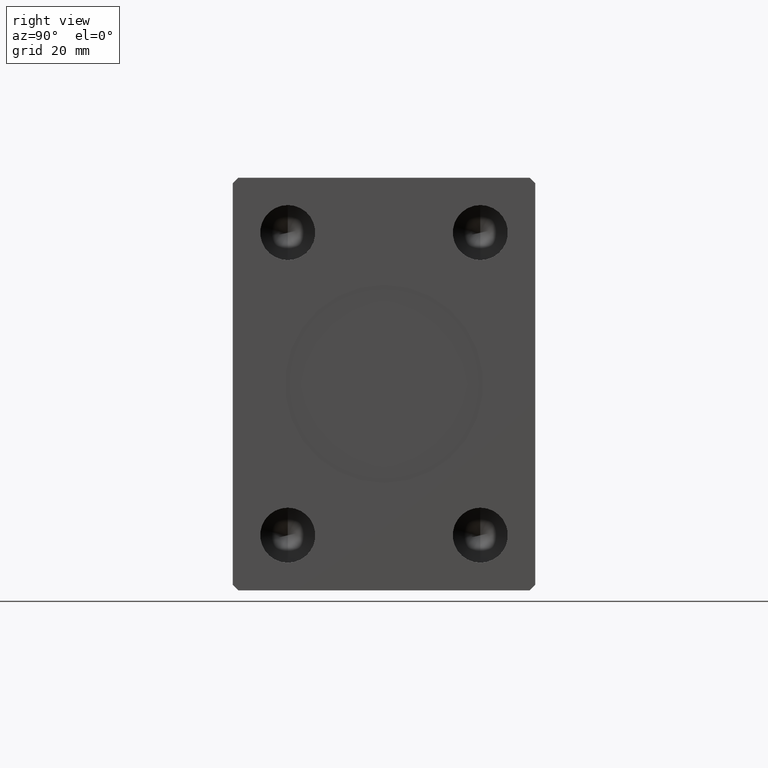
[diagram: clean part render]
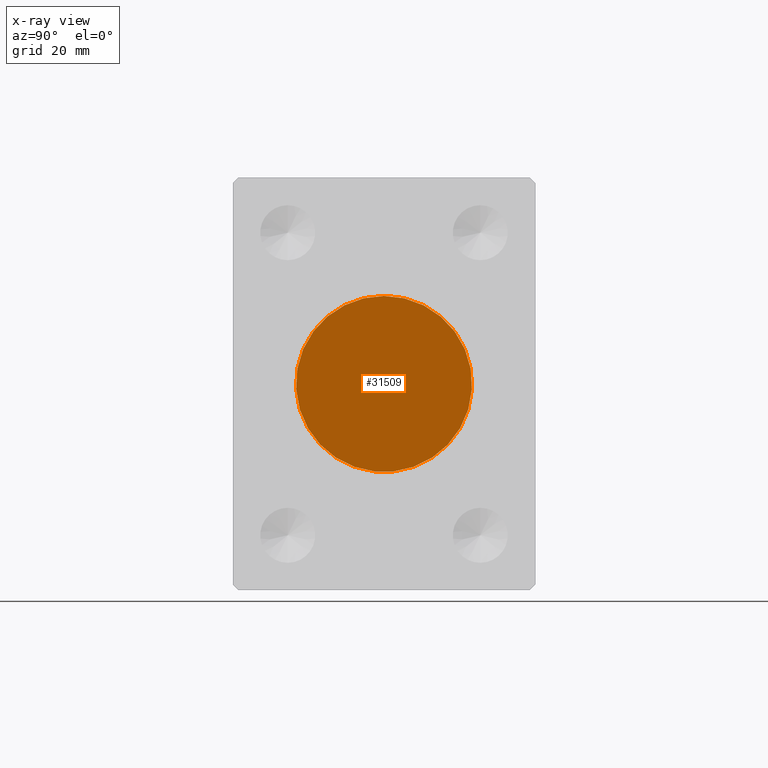
[diagram: x-ray — body ghosted, one internal face saturated and labeled with its STEP entity id]
A machine part, right view, then the same camera in x-ray: the body is ghosted and one INTERNAL B-rep face — a face not visible from any outside direction — is saturated and labeled: STEP entity #31509.
In plain terms, the highlighted planar face has unit normal (-1, 0, 0).
Its self-contained STEP definition (entity closure, byte-faithful):
#770 = DIRECTION ( 'NONE',  ( 0.000000000000000000, -1.000000000000000000, 0.000000000000000000 ) ) ;
#3779 = EDGE_LOOP ( 'NONE', ( #29976, #19995, #30425 ) ) ;
#8231 = AXIS2_PLACEMENT_3D ( 'NONE', #27278, #17683, #13892 ) ;
#9641 = CIRCLE ( 'NONE', #19617, 16.00000000000000000 ) ;
#9722 = AXIS2_PLACEMENT_3D ( 'NONE', #14262, #37470, #41486 ) ;
#10467 = CIRCLE ( 'NONE', #9722, 16.00000000000000000 ) ;
#10589 = CARTESIAN_POINT ( 'NONE',  ( 71.50000000000000000, 0.000000000000000000, -15.89999999999998970 ) ) ;
#10997 = VERTEX_POINT ( 'NONE', #25804 ) ;
#11071 = CARTESIAN_POINT ( 'NONE',  ( 71.50000000000000000, 0.000000000000000000, 16.00000000000000000 ) ) ;
#12954 = EDGE_CURVE ( 'NONE', #10997, #37725, #9641, .T. ) ;
#13892 = DIRECTION ( 'NONE',  ( 0.000000000000000000, 0.000000000000000000, 1.000000000000000000 ) ) ;
#14262 = CARTESIAN_POINT ( 'NONE',  ( 71.50000000000000000, 0.000000000000000000, 0.000000000000000000 ) ) ;
#14558 = PLANE ( 'NONE',  #8231 ) ;
#17683 = DIRECTION ( 'NONE',  ( -1.000000000000000000, 0.000000000000000000, 0.000000000000000000 ) ) ;
#17692 = CARTESIAN_POINT ( 'NONE',  ( 71.50000000000000000, 1.786057109949259036, -15.89999999999998970 ) ) ;
#19617 = AXIS2_PLACEMENT_3D ( 'NONE', #33417, #40557, #43670 ) ;
#19995 = ORIENTED_EDGE ( 'NONE', *, *, #39851, .T. ) ;
#21533 = EDGE_CURVE ( 'NONE', #29160, #10997, #27314, .T. ) ;
#25804 = CARTESIAN_POINT ( 'NONE',  ( 71.50000000000000000, -1.786057109949259036, -15.89999999999998970 ) ) ;
#27278 = CARTESIAN_POINT ( 'NONE',  ( 71.50000000000000000, 0.000000000000000000, 0.000000000000000000 ) ) ;
#27314 = LINE ( 'NONE', #10589, #37931 ) ;
#29160 = VERTEX_POINT ( 'NONE', #17692 ) ;
#29976 = ORIENTED_EDGE ( 'NONE', *, *, #12954, .T. ) ;
#30425 = ORIENTED_EDGE ( 'NONE', *, *, #21533, .T. ) ;
#30856 = FACE_OUTER_BOUND ( 'NONE', #3779, .T. ) ;
#31509 = ADVANCED_FACE ( 'NONE', ( #30856 ), #14558, .T. ) ;
#33417 = CARTESIAN_POINT ( 'NONE',  ( 71.50000000000000000, 0.000000000000000000, 0.000000000000000000 ) ) ;
#37470 = DIRECTION ( 'NONE',  ( -1.000000000000000000, 0.000000000000000000, 0.000000000000000000 ) ) ;
#37725 = VERTEX_POINT ( 'NONE', #11071 ) ;
#37931 = VECTOR ( 'NONE', #770, 1000.000000000000000 ) ;
#39851 = EDGE_CURVE ( 'NONE', #37725, #29160, #10467, .T. ) ;
#40557 = DIRECTION ( 'NONE',  ( -1.000000000000000000, 0.000000000000000000, 0.000000000000000000 ) ) ;
#41486 = DIRECTION ( 'NONE',  ( 0.000000000000000000, 0.000000000000000000, 1.000000000000000000 ) ) ;
#43670 = DIRECTION ( 'NONE',  ( 0.000000000000000000, 0.000000000000000000, 1.000000000000000000 ) ) ;